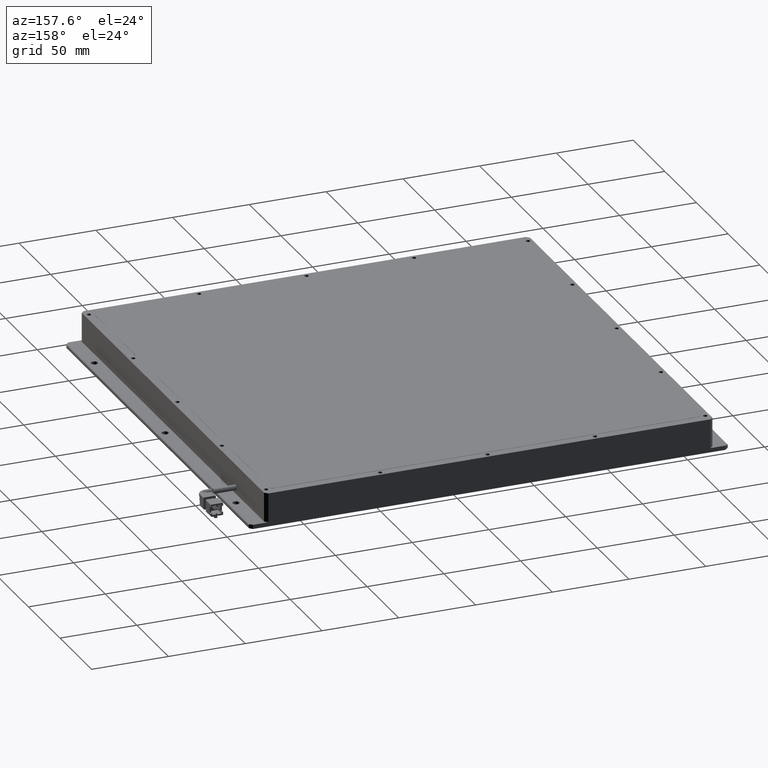
[diagram: clean part render]
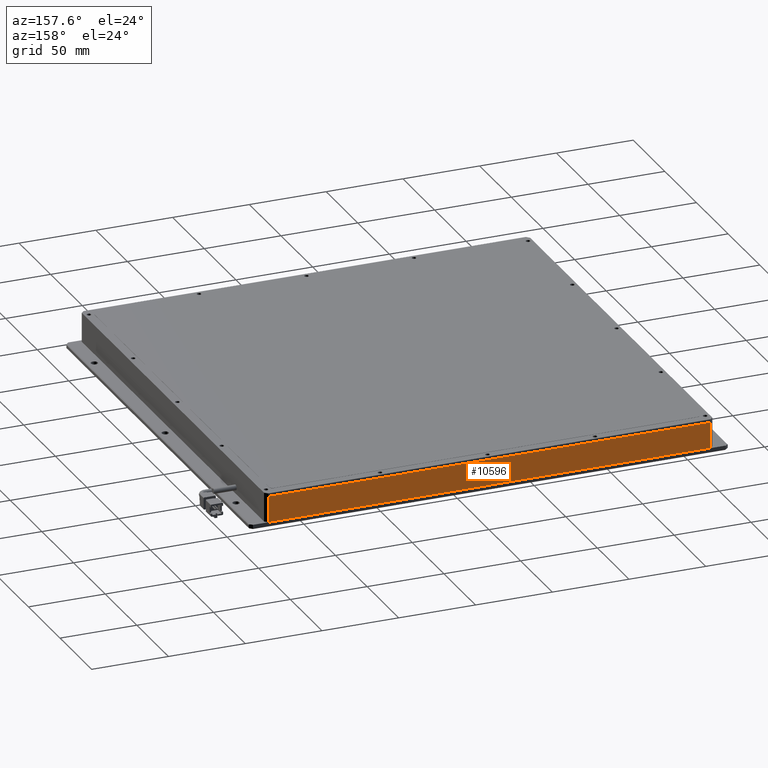
[diagram: same view with one face highlighted and labeled with its STEP entity id]
A machine part, auxiliary view. The second image highlights one B-rep face of the part: STEP entity #10596.
In plain terms, the highlighted planar face has unit normal (0, -1, 0).
Its self-contained STEP definition (entity closure, byte-faithful):
#989 = CARTESIAN_POINT ( 'NONE',  ( 176.9193228736581900, 159.2698045692267500, 8.499999999971805700 ) ) ;
#1903 = EDGE_CURVE ( 'NONE', #15652, #18361, #18483, .T. ) ;
#1961 = CARTESIAN_POINT ( 'NONE',  ( -113.0806771263418400, 159.2698045692267500, 8.499999999971805700 ) ) ;
#3029 = CARTESIAN_POINT ( 'NONE',  ( 176.9193228736581300, 159.2698045692267500, -8.500000000028194300 ) ) ;
#3909 = VECTOR ( 'NONE', #11384, 1000.000000000000000 ) ;
#4119 = DIRECTION ( 'NONE',  ( 0.0000000000000000000, -0.0000000000000000000, -1.000000000000000000 ) ) ;
#4500 = CARTESIAN_POINT ( 'NONE',  ( -113.0806771263418400, 159.2698045692267500, -8.500000000028197900 ) ) ;
#6660 = DIRECTION ( 'NONE',  ( 1.000000000000000000, 0.0000000000000000000, 0.0000000000000000000 ) ) ;
#6996 = CARTESIAN_POINT ( 'NONE',  ( 176.9193228736581900, 159.2698045692267500, 8.499999999971805700 ) ) ;
#9115 = ORIENTED_EDGE ( 'NONE', *, *, #26471, .F. ) ;
#9472 = LINE ( 'NONE', #16825, #20889 ) ;
#10489 = ORIENTED_EDGE ( 'NONE', *, *, #1903, .F. ) ;
#10596 = ADVANCED_FACE ( 'NONE', ( #14979 ), #19051, .F. ) ;
#11209 = ORIENTED_EDGE ( 'NONE', *, *, #14409, .F. ) ;
#11384 = DIRECTION ( 'NONE',  ( -0.0000000000000000000, 0.0000000000000000000, 1.000000000000000000 ) ) ;
#12767 = CARTESIAN_POINT ( 'NONE',  ( -111.0806771263418700, 159.2698045692267500, -8.500000000028197900 ) ) ;
#14409 = EDGE_CURVE ( 'NONE', #15364, #15652, #26073, .T. ) ;
#14979 = FACE_OUTER_BOUND ( 'NONE', #23936, .T. ) ;
#15313 = LINE ( 'NONE', #24098, #3909 ) ;
#15364 = VERTEX_POINT ( 'NONE', #12767 ) ;
#15388 = VECTOR ( 'NONE', #6660, 1000.000000000000000 ) ;
#15652 = VERTEX_POINT ( 'NONE', #3029 ) ;
#16825 = CARTESIAN_POINT ( 'NONE',  ( -113.0806771263418400, 159.2698045692266900, 8.499999999971805700 ) ) ;
#16978 = DIRECTION ( 'NONE',  ( 0.0000000000000000000, -1.000000000000000000, 0.0000000000000000000 ) ) ;
#18039 = VERTEX_POINT ( 'NONE', #23442 ) ;
#18361 = VERTEX_POINT ( 'NONE', #989 ) ;
#18483 = LINE ( 'NONE', #6996, #23454 ) ;
#19051 = PLANE ( 'NONE',  #19779 ) ;
#19637 = EDGE_CURVE ( 'NONE', #15364, #18039, #15313, .T. ) ;
#19779 = AXIS2_PLACEMENT_3D ( 'NONE', #1961, #16978, #4119 ) ;
#20889 = VECTOR ( 'NONE', #23228, 1000.000000000000000 ) ;
#23228 = DIRECTION ( 'NONE',  ( -1.000000000000000000, -0.0000000000000000000, 0.0000000000000000000 ) ) ;
#23442 = CARTESIAN_POINT ( 'NONE',  ( -111.0806771263418400, 159.2698045692267500, 8.499999999971805700 ) ) ;
#23454 = VECTOR ( 'NONE', #23543, 1000.000000000000000 ) ;
#23543 = DIRECTION ( 'NONE',  ( -0.0000000000000000000, 0.0000000000000000000, 1.000000000000000000 ) ) ;
#23936 = EDGE_LOOP ( 'NONE', ( #11209, #26389, #9115, #10489 ) ) ;
#24098 = CARTESIAN_POINT ( 'NONE',  ( -111.0806771263418400, 159.2698045692267500, 8.499999999971805700 ) ) ;
#26073 = LINE ( 'NONE', #4500, #15388 ) ;
#26389 = ORIENTED_EDGE ( 'NONE', *, *, #19637, .T. ) ;
#26471 = EDGE_CURVE ( 'NONE', #18361, #18039, #9472, .T. ) ;